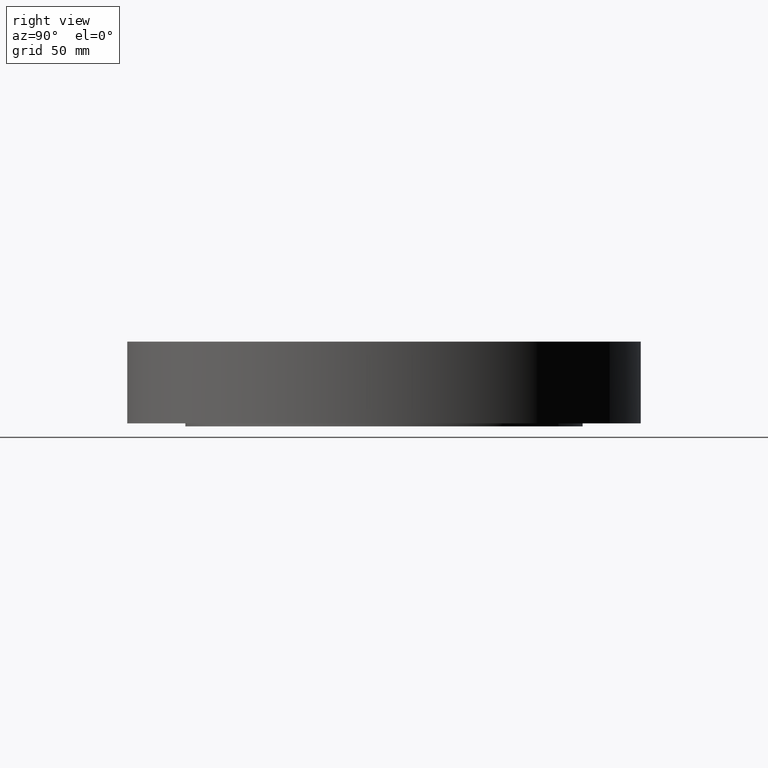
[diagram: clean part render]
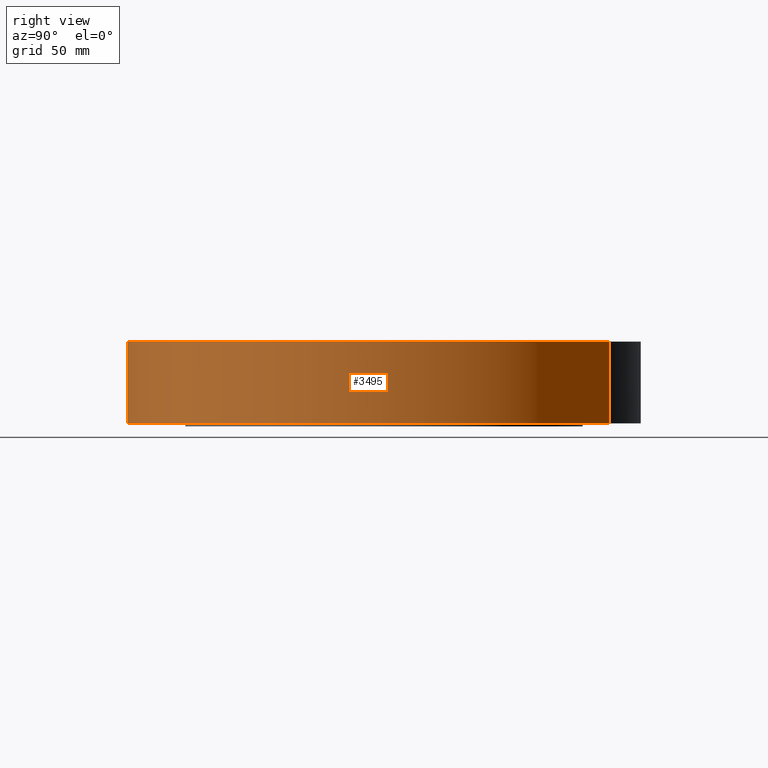
[diagram: same view with one face highlighted and labeled with its STEP entity id]
A machine part, right view. The second image highlights one B-rep face of the part: STEP entity #3495.
In plain terms, the highlighted cylindrical surface (partial cylindrical patch) has radius 139.7 mm, axis along (0, 0, -1).
Its self-contained STEP definition (entity closure, byte-faithful):
#3297=AXIS2_PLACEMENT_3D('Circle Axis2P3D',#3295,#3296,$) ;
#3456=AXIS2_PLACEMENT_3D('Cylinder Axis2P3D',#3453,#3454,#3455) ;
#3486=AXIS2_PLACEMENT_3D('Circle Axis2P3D',#3484,#3485,$) ;
#3290=CARTESIAN_POINT('Vertex',(-2.63684046233,-4.82670409042,-4.22409264172E-014)) ;
#3292=CARTESIAN_POINT('Vertex',(2.63684046233,4.82670409042,-4.22409264172E-014)) ;
#3295=CARTESIAN_POINT('Axis2P3D Location',(0.,0.,0.)) ;
#3453=CARTESIAN_POINT('Axis2P3D Location',(0.,0.,0.843750000003)) ;
#3458=CARTESIAN_POINT('Line Origine',(-2.63684046233,-4.82670409042,0.875000000003)) ;
#3462=CARTESIAN_POINT('Vertex',(-2.63684046233,-4.82670409042,1.75000000001)) ;
#3469=CARTESIAN_POINT('Vertex',(2.63684046233,4.82670409042,1.75000000001)) ;
#3472=CARTESIAN_POINT('Line Origine',(2.63684046233,4.82670409042,0.875000000003)) ;
#3484=CARTESIAN_POINT('Axis2P3D Location',(0.,0.,1.75000000001)) ;
#3296=DIRECTION('Axis2P3D Direction',(0.,0.,-0.0393700787402)) ;
#3454=DIRECTION('Axis2P3D Direction',(0.,0.,-0.0393700787402)) ;
#3455=DIRECTION('Axis2P3D XDirection',(0.0188750212049,0.0345504945626,0.)) ;
#3459=DIRECTION('Vector Direction',(0.,0.,-0.0393700787402)) ;
#3473=DIRECTION('Vector Direction',(0.,0.,-0.0393700787402)) ;
#3485=DIRECTION('Axis2P3D Direction',(0.,0.,-0.0393700787402)) ;
#3460=VECTOR('Line Direction',#3459,0.0393700787402) ;
#3474=VECTOR('Line Direction',#3473,0.0393700787402) ;
#3490=ORIENTED_EDGE('',*,*,#3299,.F.) ;
#3491=ORIENTED_EDGE('',*,*,#3476,.T.) ;
#3492=ORIENTED_EDGE('',*,*,#3488,.T.) ;
#3493=ORIENTED_EDGE('',*,*,#3464,.F.) ;
#3495=ADVANCED_FACE('PartBody',(#3494),#3457,.T.) ;
#3298=CIRCLE('generated circle',#3297,5.50000000002) ;
#3487=CIRCLE('generated circle',#3486,5.50000000002) ;
#3457=CYLINDRICAL_SURFACE('generated cylinder',#3456,5.50000000002) ;
#3299=EDGE_CURVE('',#3293,#3291,#3298,.T.) ;
#3464=EDGE_CURVE('',#3291,#3463,#3461,.F.) ;
#3476=EDGE_CURVE('',#3293,#3470,#3475,.F.) ;
#3488=EDGE_CURVE('',#3470,#3463,#3487,.T.) ;
#3489=EDGE_LOOP('',(#3490,#3491,#3492,#3493)) ;
#3494=FACE_OUTER_BOUND('',#3489,.T.) ;
#3461=LINE('Line',#3458,#3460) ;
#3475=LINE('Line',#3472,#3474) ;
#3291=VERTEX_POINT('',#3290) ;
#3293=VERTEX_POINT('',#3292) ;
#3463=VERTEX_POINT('',#3462) ;
#3470=VERTEX_POINT('',#3469) ;